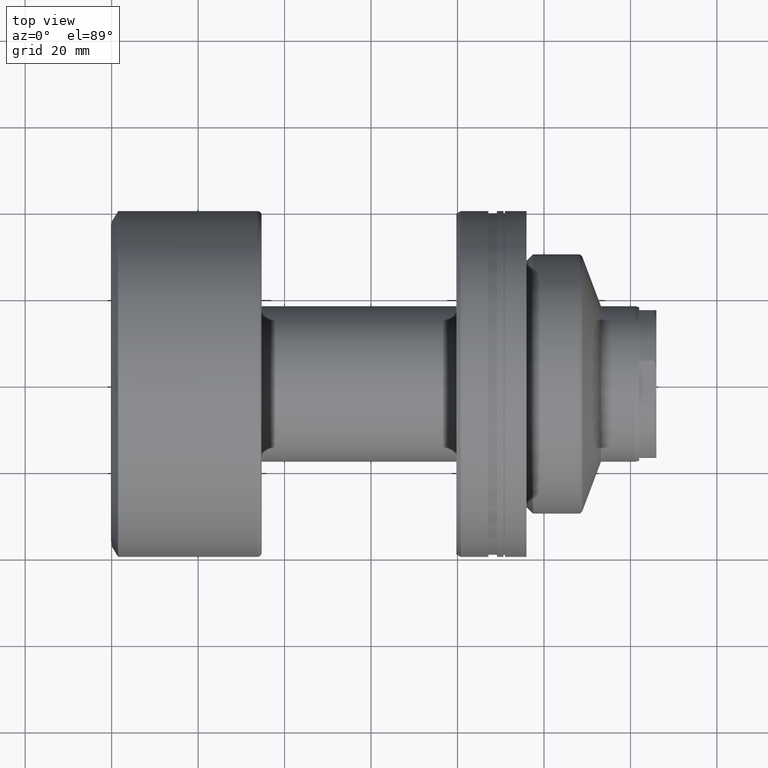
[diagram: clean part render]
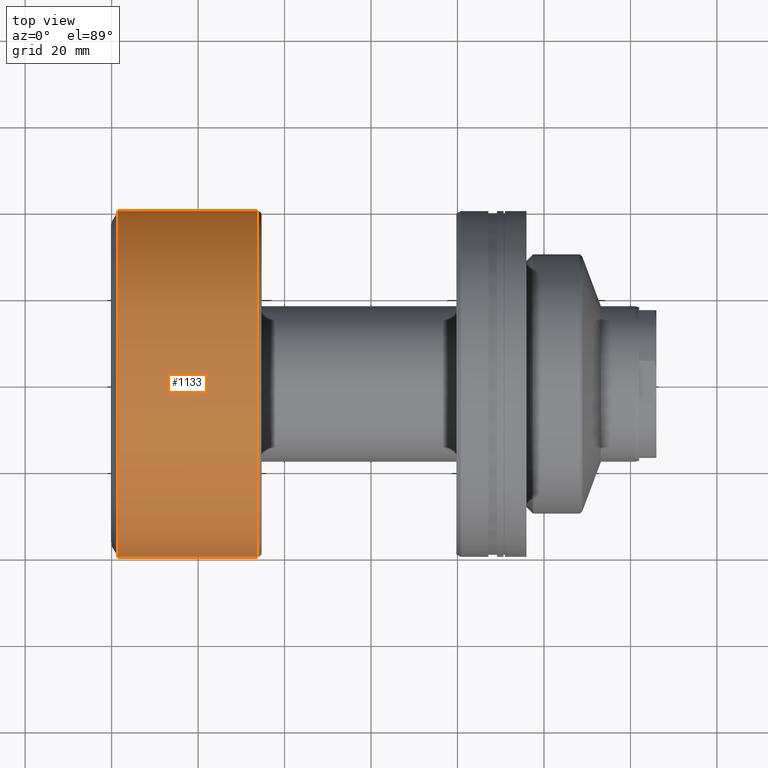
[diagram: same view with one face highlighted and labeled with its STEP entity id]
A machine part, top view. The second image highlights one B-rep face of the part: STEP entity #1133.
In plain terms, the highlighted cylindrical surface (partial cylindrical patch) has radius 40 mm, axis along (-1, -0, -0).
Its self-contained STEP definition (entity closure, byte-faithful):
#55 = CIRCLE ( 'NONE', #642, 39.99999999999999289 ) ;
#62 = ORIENTED_EDGE ( 'NONE', *, *, #1680, .F. ) ;
#152 = CARTESIAN_POINT ( 'NONE',  ( 33.70000000000000284, -39.99999999999999289, 0.000000000000000000 ) ) ;
#220 = CARTESIAN_POINT ( 'NONE',  ( -4.278169288276262587E-16, 39.99999999999999289, 4.898587196589412237E-15 ) ) ;
#261 = EDGE_LOOP ( 'NONE', ( #280, #465, #62, #1941 ) ) ;
#280 = ORIENTED_EDGE ( 'NONE', *, *, #741, .T. ) ;
#312 = LINE ( 'NONE', #326, #1070 ) ;
#326 = CARTESIAN_POINT ( 'NONE',  ( 4.278169288276262587E-16, -39.99999999999999289, 0.000000000000000000 ) ) ;
#354 = DIRECTION ( 'NONE',  ( 1.069542322069065801E-17, -1.000000000000000000, 0.000000000000000000 ) ) ;
#371 = LINE ( 'NONE', #220, #1764 ) ;
#385 = CARTESIAN_POINT ( 'NONE',  ( 1.500000000000004663, 1.604313483103603400E-17, 0.000000000000000000 ) ) ;
#399 = DIRECTION ( 'NONE',  ( 0.000000000000000000, -1.000000000000000000, 0.000000000000000000 ) ) ;
#440 = VERTEX_POINT ( 'NONE', #469 ) ;
#465 = ORIENTED_EDGE ( 'NONE', *, *, #1885, .T. ) ;
#469 = CARTESIAN_POINT ( 'NONE',  ( 1.500000000000004219, 39.99999999999999289, 0.000000000000000000 ) ) ;
#545 = DIRECTION ( 'NONE',  ( -1.000000000000000000, -1.069542322069065801E-17, -0.000000000000000000 ) ) ;
#642 = AXIS2_PLACEMENT_3D ( 'NONE', #1279, #911, #399 ) ;
#707 = CARTESIAN_POINT ( 'NONE',  ( 0.000000000000000000, 0.000000000000000000, 0.000000000000000000 ) ) ;
#708 = DIRECTION ( 'NONE',  ( -1.000000000000000000, -1.069542322069065801E-17, -0.000000000000000000 ) ) ;
#741 = EDGE_CURVE ( 'NONE', #2166, #2244, #55, .T. ) ;
#867 = EDGE_CURVE ( 'NONE', #2166, #1847, #312, .T. ) ;
#896 = CARTESIAN_POINT ( 'NONE',  ( 33.70000000000000284, 39.99999999999999289, 4.898587196589412237E-15 ) ) ;
#911 = DIRECTION ( 'NONE',  ( -1.000000000000000000, -1.069542322069065801E-17, -0.000000000000000000 ) ) ;
#1032 = DIRECTION ( 'NONE',  ( -1.000000000000000000, -1.069542322069065801E-17, -0.000000000000000000 ) ) ;
#1036 = AXIS2_PLACEMENT_3D ( 'NONE', #385, #545, #1107 ) ;
#1064 = FACE_OUTER_BOUND ( 'NONE', #261, .T. ) ;
#1070 = VECTOR ( 'NONE', #1032, 1000.000000000000000 ) ;
#1107 = DIRECTION ( 'NONE',  ( 1.084202172485504588E-17, -1.000000000000000000, 0.000000000000000000 ) ) ;
#1133 = ADVANCED_FACE ( 'NONE', ( #1064 ), #1250, .T. ) ;
#1250 = CYLINDRICAL_SURFACE ( 'NONE', #1380, 39.99999999999999289 ) ;
#1279 = CARTESIAN_POINT ( 'NONE',  ( 33.70000000000000284, 3.604357625372751759E-16, 0.000000000000000000 ) ) ;
#1380 = AXIS2_PLACEMENT_3D ( 'NONE', #707, #1439, #354 ) ;
#1439 = DIRECTION ( 'NONE',  ( -1.000000000000000000, -1.069542322069065801E-17, -0.000000000000000000 ) ) ;
#1455 = CARTESIAN_POINT ( 'NONE',  ( 1.500000000000005107, -39.99999999999999289, 4.898587196589412237E-15 ) ) ;
#1680 = EDGE_CURVE ( 'NONE', #1847, #440, #1838, .T. ) ;
#1764 = VECTOR ( 'NONE', #708, 1000.000000000000000 ) ;
#1838 = CIRCLE ( 'NONE', #1036, 39.99999999999999289 ) ;
#1847 = VERTEX_POINT ( 'NONE', #1455 ) ;
#1885 = EDGE_CURVE ( 'NONE', #2244, #440, #371, .T. ) ;
#1941 = ORIENTED_EDGE ( 'NONE', *, *, #867, .F. ) ;
#2166 = VERTEX_POINT ( 'NONE', #152 ) ;
#2244 = VERTEX_POINT ( 'NONE', #896 ) ;